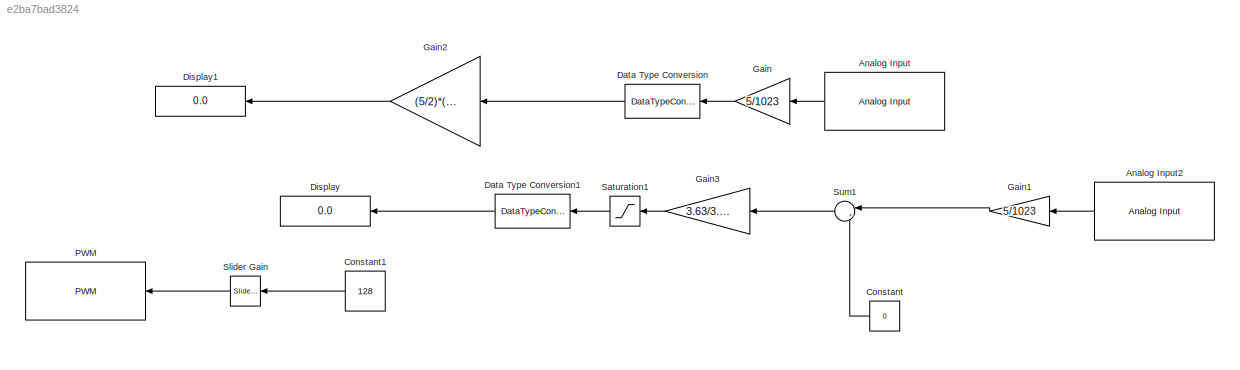
MODEL slx_e2ba7bad3824
KIND model
CONFIG AbsTol = auto
CONFIG EnableMultiTasking = on
CONFIG FixedStep = auto
CONFIG MaxStep = auto
CONFIG MinStep = auto
CONFIG RelTol = 1e-3
CONFIG SampleTimeConstraint = Unconstrained
CONFIG Solver = FixedStepAuto
CONFIG SolverName = FixedStepAuto
CONFIG StartTime = 0.0
CONFIG StopTime = inf
BLOCK [Reference] Analog Input  REF=arduinolib/Analog Input
  Ports = [0, 1]
  SourceBlock = arduinolib/Analog Input
  SourceProductBaseCode = ARDUINO
  SourceType = Arduino Analog Input
BLOCK [Reference] Analog Input2  REF=arduinolib/Analog Input
  Ports = [0, 1]
  SourceBlock = arduinolib/Analog Input
  SourceProductBaseCode = ARDUINO
  SourceType = Arduino Analog Input
BLOCK [Constant] Constant
  Value = 0
BLOCK [Constant] Constant1
  SampleTime = -1
  Value = 128
  VectorParams1D = off
BLOCK [DataTypeConversion] Data Type Conversion
  OutDataTypeStr = double
  RndMeth = Floor
  SaturateOnIntegerOverflow = off
BLOCK [DataTypeConversion] Data Type Conversion1
  OutDataTypeStr = double
  RndMeth = Floor
  SaturateOnIntegerOverflow = off
BLOCK [Display] Display
  Decimation = 1
  Ports = [1]
BLOCK [Display] Display1
  Decimation = 1
  Ports = [1]
BLOCK [Gain] Gain
  Gain = 5/1023
BLOCK [Gain] Gain1
  Gain = 5/1023
BLOCK [Gain] Gain2
  Gain = (5/2)*(9.99/9.836)
BLOCK [Gain] Gain3
  Gain = 3.63/3.519
BLOCK [Reference] PWM  REF=arduinolib/PWM
  Ports = [1]
  SourceBlock = arduinolib/PWM
  SourceProductBaseCode = ARDUINO
  SourceType = Arduino PWM
BLOCK [Saturate] Saturation1
  LowerLimit = 0
BLOCK [Reference] Slider Gain  REF=simulink/Math
Operations/Slider
Gain
  Ports = [1, 1]
  SourceBlock = simulink/Math\nOperations/Slider\nGain
  SourceProductBaseCode = SL
  SourceType = Slider Gain
BLOCK [Sum] Sum1
  Inputs = |+-
  Ports = [2, 1]
LINE Analog Input2:1 -> Gain1:1
LINE Analog Input:1 -> Gain:1
LINE Constant1:1 -> Slider Gain:1
LINE Constant:1 -> Sum1:2
LINE Data Type Conversion1:1 -> Display:1
LINE Data Type Conversion:1 -> Gain2:1
LINE Gain1:1 -> Sum1:1
LINE Gain2:1 -> Display1:1
LINE Gain3:1 -> Saturation1:1
LINE Gain:1 -> Data Type Conversion:1
LINE Saturation1:1 -> Data Type Conversion1:1
LINE Slider Gain:1 -> PWM:1
LINE Sum1:1 -> Gain3:1
